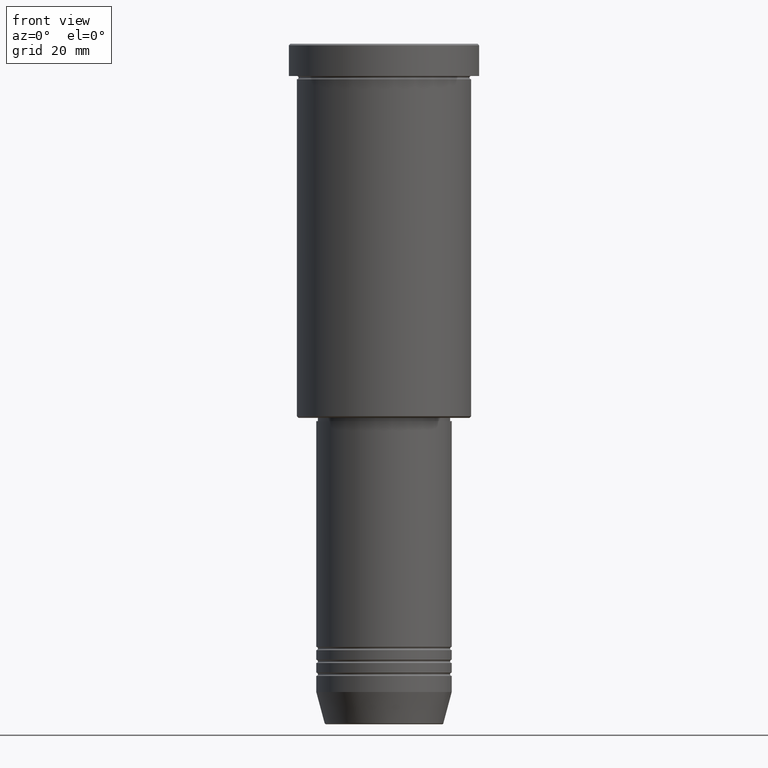
[diagram: clean part render]
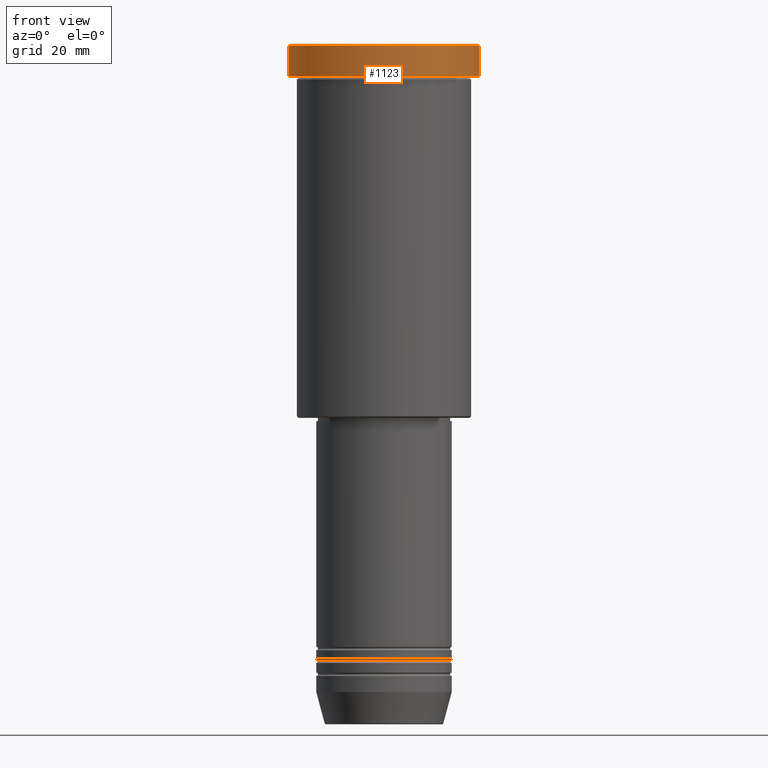
[diagram: same view with one face highlighted and labeled with its STEP entity id]
A machine part, front view. The second image highlights one B-rep face of the part: STEP entity #1123.
In plain terms, the highlighted cylindrical surface (partial cylindrical patch) has radius 29.5 mm, axis along (-0, -0, 1).
Its self-contained STEP definition (entity closure, byte-faithful):
#4 = DIRECTION ( 'NONE',  ( -0.000000000000000000, -0.000000000000000000, 1.000000000000000000 ) ) ;
#18 = CYLINDRICAL_SURFACE ( 'NONE', #36, 29.50000000000000000 ) ;
#36 = AXIS2_PLACEMENT_3D ( 'NONE', #181, #1016, #915 ) ;
#37 = CIRCLE ( 'NONE', #225, 29.50000000000000000 ) ;
#181 = CARTESIAN_POINT ( 'NONE',  ( 0.000000000000000000, 0.000000000000000000, 0.000000000000000000 ) ) ;
#219 = VERTEX_POINT ( 'NONE', #1067 ) ;
#225 = AXIS2_PLACEMENT_3D ( 'NONE', #361, #721, #1165 ) ;
#272 = EDGE_CURVE ( 'NONE', #885, #219, #755, .T. ) ;
#329 = AXIS2_PLACEMENT_3D ( 'NONE', #972, #4, #724 ) ;
#361 = CARTESIAN_POINT ( 'NONE',  ( 0.000000000000000000, 0.000000000000000000, -0.5000000000000281997 ) ) ;
#374 = DIRECTION ( 'NONE',  ( -0.000000000000000000, -0.000000000000000000, 1.000000000000000000 ) ) ;
#403 = FACE_OUTER_BOUND ( 'NONE', #646, .T. ) ;
#461 = ORIENTED_EDGE ( 'NONE', *, *, #881, .F. ) ;
#501 = EDGE_CURVE ( 'NONE', #723, #885, #694, .T. ) ;
#551 = CARTESIAN_POINT ( 'NONE',  ( 29.50000000000000000, 0.000000000000000000, -9.999999999999992895 ) ) ;
#615 = VECTOR ( 'NONE', #1095, 1000.000000000000000 ) ;
#646 = EDGE_LOOP ( 'NONE', ( #461, #655, #676, #989 ) ) ;
#655 = ORIENTED_EDGE ( 'NONE', *, *, #501, .T. ) ;
#676 = ORIENTED_EDGE ( 'NONE', *, *, #272, .T. ) ;
#677 = VECTOR ( 'NONE', #374, 1000.000000000000000 ) ;
#694 = CIRCLE ( 'NONE', #329, 29.50000000000000000 ) ;
#721 = DIRECTION ( 'NONE',  ( 0.000000000000000000, 0.000000000000000000, -1.000000000000000000 ) ) ;
#723 = VERTEX_POINT ( 'NONE', #1022 ) ;
#724 = DIRECTION ( 'NONE',  ( 1.000000000000000000, 0.000000000000000000, 0.000000000000000000 ) ) ;
#755 = LINE ( 'NONE', #1101, #615 ) ;
#786 = VERTEX_POINT ( 'NONE', #1122 ) ;
#881 = EDGE_CURVE ( 'NONE', #723, #786, #975, .T. ) ;
#885 = VERTEX_POINT ( 'NONE', #551 ) ;
#915 = DIRECTION ( 'NONE',  ( 1.000000000000000000, 0.000000000000000000, 0.000000000000000000 ) ) ;
#972 = CARTESIAN_POINT ( 'NONE',  ( 0.000000000000000000, 0.000000000000000000, -9.999999999999992895 ) ) ;
#975 = LINE ( 'NONE', #1171, #677 ) ;
#989 = ORIENTED_EDGE ( 'NONE', *, *, #1051, .T. ) ;
#1016 = DIRECTION ( 'NONE',  ( -0.000000000000000000, -0.000000000000000000, 1.000000000000000000 ) ) ;
#1022 = CARTESIAN_POINT ( 'NONE',  ( -29.50000000000000000, 3.612708057484691604E-15, -9.999999999999992895 ) ) ;
#1051 = EDGE_CURVE ( 'NONE', #219, #786, #37, .T. ) ;
#1067 = CARTESIAN_POINT ( 'NONE',  ( 29.50000000000000000, 0.000000000000000000, -0.5000000000000281997 ) ) ;
#1095 = DIRECTION ( 'NONE',  ( -0.000000000000000000, -0.000000000000000000, 1.000000000000000000 ) ) ;
#1101 = CARTESIAN_POINT ( 'NONE',  ( 29.50000000000000000, 0.000000000000000000, 0.000000000000000000 ) ) ;
#1122 = CARTESIAN_POINT ( 'NONE',  ( -29.50000000000000000, 3.612708057484691604E-15, -0.5000000000000281997 ) ) ;
#1123 = ADVANCED_FACE ( 'NONE', ( #403 ), #18, .T. ) ;
#1165 = DIRECTION ( 'NONE',  ( 1.000000000000000000, 0.000000000000000000, 0.000000000000000000 ) ) ;
#1171 = CARTESIAN_POINT ( 'NONE',  ( -29.50000000000000000, 3.612708057484691604E-15, 0.000000000000000000 ) ) ;